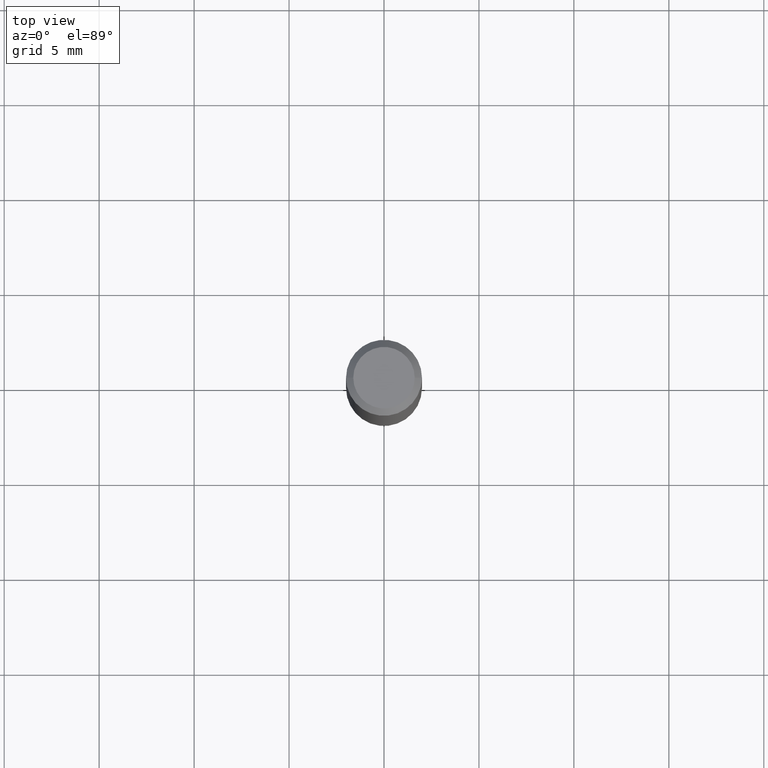
[diagram: clean part render]
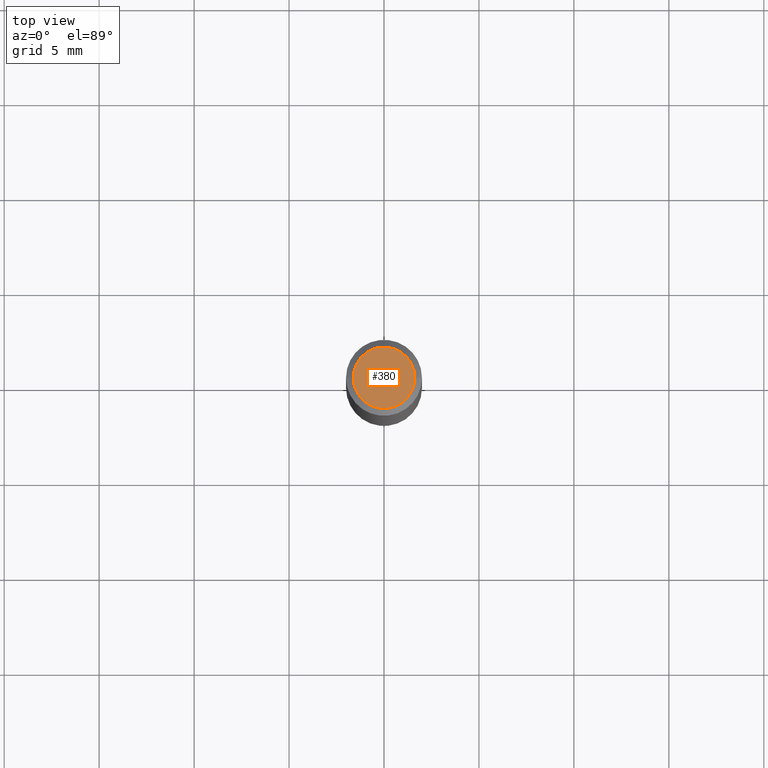
[diagram: same view with one face highlighted and labeled with its STEP entity id]
A machine part, top view. The second image highlights one B-rep face of the part: STEP entity #380.
In plain terms, the highlighted planar face has unit normal (0, -0, -1).
Its self-contained STEP definition (entity closure, byte-faithful):
#9 = AXIS2_PLACEMENT_3D ( 'NONE', #279, #240, #425 ) ;
#17 = ORIENTED_EDGE ( 'NONE', *, *, #175, .T. ) ;
#31 = DIRECTION ( 'NONE',  ( 1.000000000000000000, -6.982962677686265922E-15, 4.852736867747365646E-29 ) ) ;
#35 = DIRECTION ( 'NONE',  ( 1.000000000000000000, -6.982962677686265922E-15, 4.852736867747365646E-29 ) ) ;
#60 = ORIENTED_EDGE ( 'NONE', *, *, #419, .T. ) ;
#68 = CARTESIAN_POINT ( 'NONE',  ( 0.06375000000000000111, -5.149965923825448321E-16, 2.075856847527832686E-16 ) ) ;
#74 = PLANE ( 'NONE',  #9 ) ;
#142 = EDGE_LOOP ( 'NONE', ( #17, #60 ) ) ;
#175 = EDGE_CURVE ( 'NONE', #300, #188, #273, .T. ) ;
#188 = VERTEX_POINT ( 'NONE', #68 ) ;
#240 = DIRECTION ( 'NONE',  ( 2.438088387897960049E-29, -3.491481338843145188E-15, -1.000000000000000000 ) ) ;
#248 = CARTESIAN_POINT ( 'NONE',  ( -5.076443166735047805E-45, 7.247815445253071091E-31, 2.075856847527799160E-16 ) ) ;
#268 = DIRECTION ( 'NONE',  ( -2.445468806185136597E-29, 3.491481338843145583E-15, 1.000000000000000000 ) ) ;
#270 = CARTESIAN_POINT ( 'NONE',  ( -5.076443166735047805E-45, 7.247815445253071091E-31, 2.075856847527799160E-16 ) ) ;
#273 = CIRCLE ( 'NONE', #339, 0.06375000000000000111 ) ;
#279 = CARTESIAN_POINT ( 'NONE',  ( 4.451638707024993845E-16, 0.06375000000000000111, -1.187890929748605601E-16 ) ) ;
#281 = AXIS2_PLACEMENT_3D ( 'NONE', #248, #460, #35 ) ;
#300 = VERTEX_POINT ( 'NONE', #461 ) ;
#317 = FACE_OUTER_BOUND ( 'NONE', #142, .T. ) ;
#328 = CIRCLE ( 'NONE', #281, 0.06375000000000000111 ) ;
#339 = AXIS2_PLACEMENT_3D ( 'NONE', #270, #268, #31 ) ;
#380 = ADVANCED_FACE ( 'NONE', ( #317 ), #74, .F. ) ;
#419 = EDGE_CURVE ( 'NONE', #188, #300, #328, .T. ) ;
#425 = DIRECTION ( 'NONE',  ( -1.000000000000000000, 6.982962677686265922E-15, -4.876176775795935793E-29 ) ) ;
#460 = DIRECTION ( 'NONE',  ( -2.445468806185136597E-29, 3.491481338843145583E-15, 1.000000000000000000 ) ) ;
#461 = CARTESIAN_POINT ( 'NONE',  ( -0.06375000000000000111, 4.713499807438232199E-16, 2.075856847527766866E-16 ) ) ;